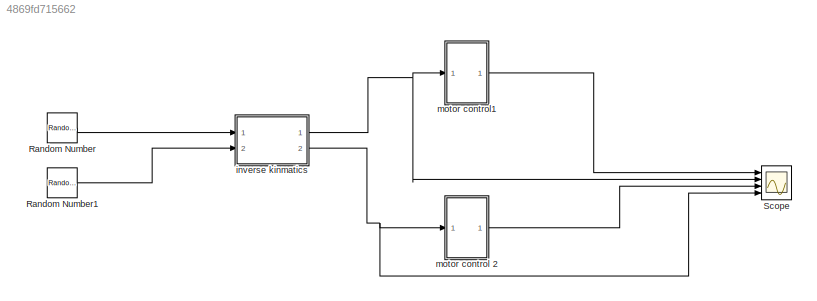
MODEL slx_4869fd715662
KIND model
CONFIG AbsTol = auto
CONFIG EnableMultiTasking = off
CONFIG FixedStep = auto
CONFIG MaxStep = auto
CONFIG MinStep = auto
CONFIG RelTol = 1e-3
CONFIG SampleTimeConstraint = Unconstrained
CONFIG Solver = VariableStepAuto
CONFIG SolverName = VariableStepAuto
CONFIG StartTime = 0.0
CONFIG StopTime = 10.0
BLOCK [RandomNumber] Random Number
  SampleTime = 0.1
BLOCK [RandomNumber] Random Number1
  SampleTime = 0.1
BLOCK [Scope] Scope
  Floating = off
  NumInputPorts = 4
  Ports = [4]
  ScopeSpecificationString = Simulink.scopes.TimeScopeBlockCfg('CurrentConfiguration', extmgr.ConfigurationSet(extmgr.Configuration('Core','General UI',true),extmgr.Configuration('Core','Source UI',true),extmgr.Configuration('Sources','WiredSimulink',true),extmgr.Configuration('Visuals','Time Domain',true,'SerializedDisplays',{struct('MinYLimReal','-303.41696','MaxYLimReal','146.26305','YLabelReal','','MinYLimMag',' 0.00000',...<+1871ch>
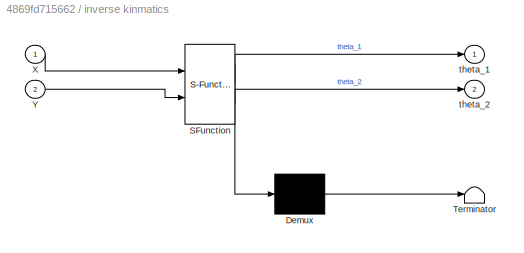
BLOCK [SubSystem] inverse kinmatics
  ErrorFcn = Stateflow.Translate.translate
  PermitHierarchicalResolution = ExplicitOnly
  Ports = [2, 2]
  RequestExecContextInheritance = off
  SFBlockType = MATLAB Function
  TreatAsAtomicUnit = on
BLOCK [Demux] inverse kinmatics/ Demux 
  Outputs = 1
  Ports = [1, 1]
BLOCK [S-Function] inverse kinmatics/ SFunction 
  EnableBusSupport = on
  FunctionName = sf_sfun
  PortCounts = [2 3]
  Ports = [2, 3]
  SFcnIsStateOwnerBlock = off
  SFunctionDeploymentMode = off
  Tag = Stateflow S-Function system_simulation 2
BLOCK [Terminator] inverse kinmatics/ Terminator 
BLOCK [Inport] inverse kinmatics/X
  IconDisplay = Port number
BLOCK [Inport] inverse kinmatics/Y
  IconDisplay = Port number
  Port = 2
BLOCK [Outport] inverse kinmatics/theta_1
  IconDisplay = Port number
BLOCK [Outport] inverse kinmatics/theta_2
  IconDisplay = Port number
  Port = 2
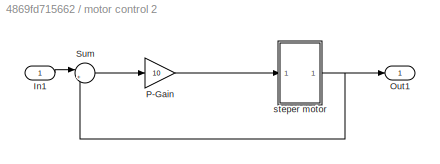
BLOCK [SubSystem] motor control 2
  Ports = [1, 1]
  RequestExecContextInheritance = off
BLOCK [Inport] motor control 2/In1
  IconDisplay = Port number
BLOCK [Outport] motor control 2/Out1
  IconDisplay = Port number
BLOCK [Gain] motor control 2/P-Gain
  Gain = 10
  OutDataTypeStr = Inherit: Inherit via internal rule
  ParamDataTypeStr = Inherit: Inherit via internal rule
  SaturateOnIntegerOverflow = off
BLOCK [Sum] motor control 2/Sum
  IconShape = round
  InputSameDT = off
  Inputs = |+-
  OutDataTypeStr = Inherit: Inherit via internal rule
  Ports = [2, 1]
  SaturateOnIntegerOverflow = off
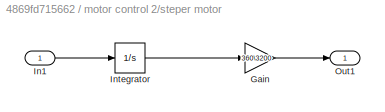
BLOCK [SubSystem] motor control 2/steper motor
  Ports = [1, 1]
  RequestExecContextInheritance = off
BLOCK [Gain] motor control 2/steper motor/Gain
  Gain = 360\3200
  OutDataTypeStr = Inherit: Inherit via internal rule
  ParamDataTypeStr = Inherit: Inherit via internal rule
  SaturateOnIntegerOverflow = off
BLOCK [Inport] motor control 2/steper motor/In1
  IconDisplay = Port number
BLOCK [Integrator] motor control 2/steper motor/Integrator
  Ports = [1, 1]
BLOCK [Outport] motor control 2/steper motor/Out1
  IconDisplay = Port number
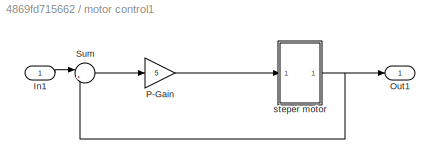
BLOCK [SubSystem] motor control1 
  Ports = [1, 1]
  RequestExecContextInheritance = off
BLOCK [Inport] motor control1 /In1
  IconDisplay = Port number
BLOCK [Outport] motor control1 /Out1
  IconDisplay = Port number
BLOCK [Gain] motor control1 /P-Gain
  Gain = 5
  OutDataTypeStr = Inherit: Inherit via internal rule
  ParamDataTypeStr = Inherit: Inherit via internal rule
  SaturateOnIntegerOverflow = off
BLOCK [Sum] motor control1 /Sum
  IconShape = round
  InputSameDT = off
  Inputs = |+-
  OutDataTypeStr = Inherit: Inherit via internal rule
  Ports = [2, 1]
  SaturateOnIntegerOverflow = off
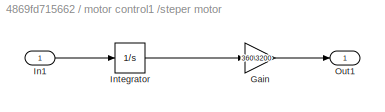
BLOCK [SubSystem] motor control1 /steper motor
  Ports = [1, 1]
  RequestExecContextInheritance = off
BLOCK [Gain] motor control1 /steper motor/Gain
  Gain = 360\3200
  OutDataTypeStr = Inherit: Inherit via internal rule
  ParamDataTypeStr = Inherit: Inherit via internal rule
  SaturateOnIntegerOverflow = off
BLOCK [Inport] motor control1 /steper motor/In1
  IconDisplay = Port number
BLOCK [Integrator] motor control1 /steper motor/Integrator
  Ports = [1, 1]
BLOCK [Outport] motor control1 /steper motor/Out1
  IconDisplay = Port number
LINE Random Number1:1 -> inverse kinmatics:2
LINE Random Number:1 -> inverse kinmatics:1
NET inverse kinmatics:1 -> Scope:2, motor control1 :1
NET inverse kinmatics:2 -> Scope:4, motor control 2:1
LINE motor control 2/In1:1 -> motor control 2/Sum:1
LINE motor control 2/P-Gain:1 -> motor control 2/steper motor:1
LINE motor control 2/Sum:1 -> motor control 2/P-Gain:1
LINE motor control 2/steper motor/Gain:1 -> motor control 2/steper motor/Out1:1
LINE motor control 2/steper motor/In1:1 -> motor control 2/steper motor/Integrator:1
LINE motor control 2/steper motor/Integrator:1 -> motor control 2/steper motor/Gain:1
NET motor control 2/steper motor:1 -> motor control 2/Out1:1, motor control 2/Sum:2
LINE motor control 2:1 -> Scope:3
LINE motor control1 /In1:1 -> motor control1 /Sum:1
LINE motor control1 /P-Gain:1 -> motor control1 /steper motor:1
LINE motor control1 /Sum:1 -> motor control1 /P-Gain:1
LINE motor control1 /steper motor/Gain:1 -> motor control1 /steper motor/Out1:1
LINE motor control1 /steper motor/In1:1 -> motor control1 /steper motor/Integrator:1
LINE motor control1 /steper motor/Integrator:1 -> motor control1 /steper motor/Gain:1
NET motor control1 /steper motor:1 -> motor control1 /Out1:1, motor control1 /Sum:2
LINE motor control1 :1 -> Scope:1
note: NET lines group one-source signal fan-out (src -> all destinations, sorted); 1:1 wires keep LINE
CHART inverse kinmatics states=1 transitions=1
  STATE_LABEL 'eML_blk_kernel()'
  STATE_LABEL 'SCRIPT:\n\nfunction [theta_1,theta_2] = fcn(X, Y)\n\n    lenth = 0.25;\n    lenth_6 = 0.2;\n    theta_1=0;\n    theta_2=0;\n    val=50;\n    val_2=50;\n    \n    \n    X=X/100;\n    Y=Y/100;\n    K1 = sqrt(((X+(lenth_6/2))^2)+(Y^2));\n    K2 = sqrt(((X-(lenth_6/2))^2)+(Y^2));\n    \n    if K1 ~= 0\n        if K2 ~=0 \n            val= ((K1^2)/(2*lenth*K1));\n            val_2= ((K2^2)/(2*lenth*K2));\n        end\n    e...<+524ch>'
